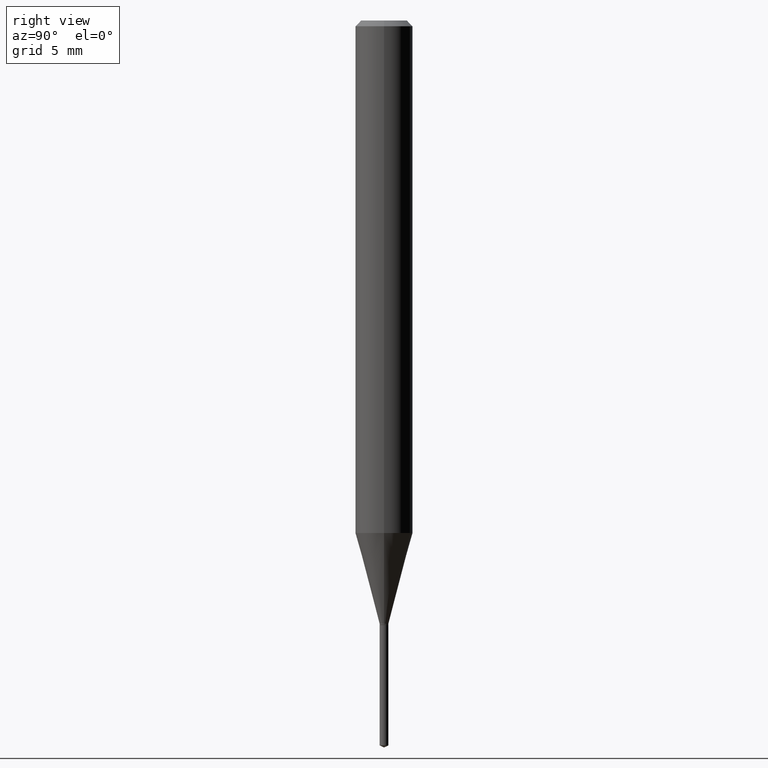
[diagram: clean part render]
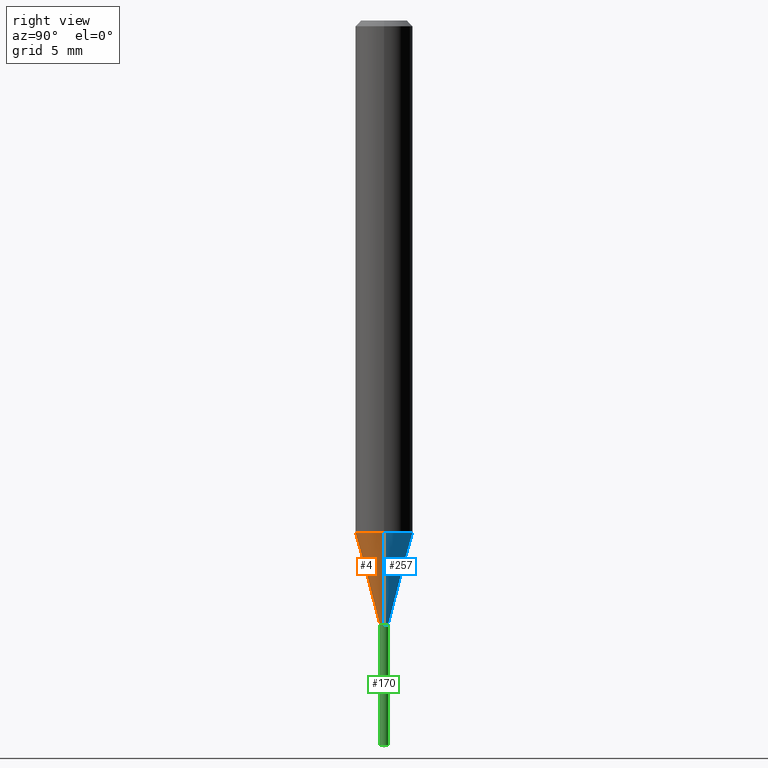
[diagram: same view with three faces highlighted in distinct colors, each labeled with its STEP entity id]
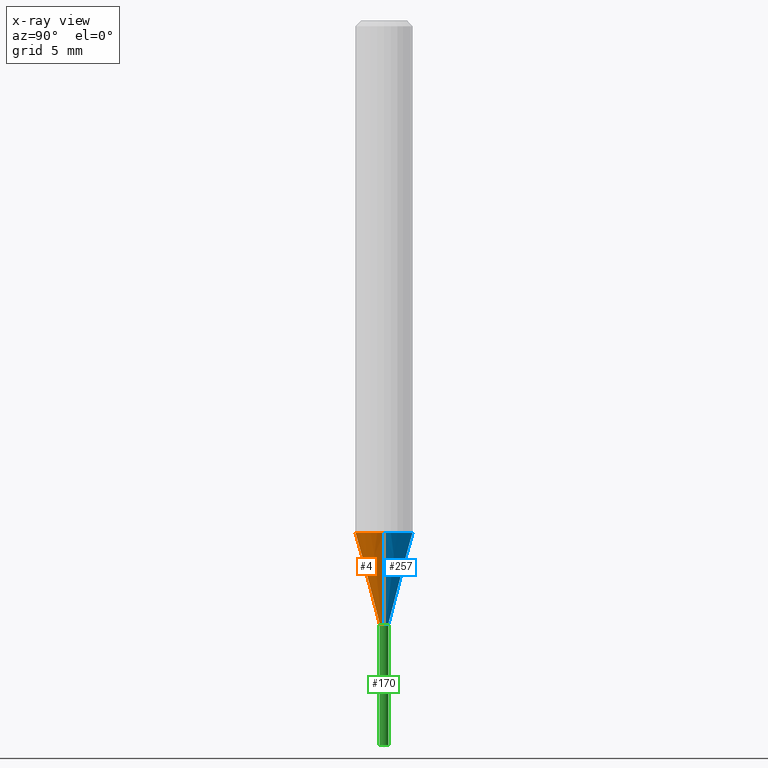
[diagram: x-ray of the same camera — body ghosted, the three highlighted faces saturated]
A machine part, right view with three faces highlighted in distinct colors.
The next image is the same camera in x-ray (body ghosted, the three faces saturated) — at least one of them is partly hidden behind the body in this view.
Their STEP definitions:

[orange] entity #4 — the highlighted conical surface has half-angle 15 deg.
#4 = ADVANCED_FACE ( 'NONE', ( #449 ), #436, .T. ) ;
#5 = VERTEX_POINT ( 'NONE', #65 ) ;
#9 = CARTESIAN_POINT ( 'NONE',  ( 3.035804975998228821E-29, -4.334324934039881032E-15, -1.241400000000000059 ) ) ;
#11 = EDGE_LOOP ( 'NONE', ( #413, #466, #432, #487 ) ) ;
#28 = CARTESIAN_POINT ( 'NONE',  ( -0.009050000000000000752, -4.270020816453591948E-15, -1.241400000000000059 ) ) ;
#46 = EDGE_CURVE ( 'NONE', #67, #190, #235, .T. ) ;
#57 = LINE ( 'NONE', #28, #110 ) ;
#65 = CARTESIAN_POINT ( 'NONE',  ( -0.05905000000000013710, -3.263230161061479349E-15, -1.054797459621556133 ) ) ;
#67 = VERTEX_POINT ( 'NONE', #445 ) ;
#82 = EDGE_CURVE ( 'NONE', #314, #5, #57, .T. ) ;
#100 = AXIS2_PLACEMENT_3D ( 'NONE', #9, #112, #412 ) ;
#110 = VECTOR ( 'NONE', #220, 39.37007874015747433 ) ;
#112 = DIRECTION ( 'NONE',  ( -2.445468806185136597E-29, 3.491481338843145583E-15, 1.000000000000000000 ) ) ;
#187 = CARTESIAN_POINT ( 'NONE',  ( -0.009050000000000000752, -4.273861445926320044E-15, -1.241400000000000059 ) ) ;
#190 = VERTEX_POINT ( 'NONE', #229 ) ;
#191 = CIRCLE ( 'NONE', #100, 0.009050000000000000752 ) ;
#213 = AXIS2_PLACEMENT_3D ( 'NONE', #266, #416, #351 ) ;
#214 = EDGE_CURVE ( 'NONE', #314, #67, #191, .T. ) ;
#220 = DIRECTION ( 'NONE',  ( -0.2588190451025213501, 5.211531920934551042E-15, 0.9659258262890682012 ) ) ;
#229 = CARTESIAN_POINT ( 'NONE',  ( 0.05905000000000013710, -4.095149592645195340E-15, -1.054797459621556133 ) ) ;
#235 = LINE ( 'NONE', #241, #373 ) ;
#241 = CARTESIAN_POINT ( 'NONE',  ( 0.009050000000000000752, -4.397520746272941828E-15, -1.241400000000000059 ) ) ;
#253 = EDGE_CURVE ( 'NONE', #5, #190, #388, .T. ) ;
#266 = CARTESIAN_POINT ( 'NONE',  ( 3.035804975998228821E-29, -4.334324934039881032E-15, -1.241400000000000059 ) ) ;
#314 = VERTEX_POINT ( 'NONE', #187 ) ;
#351 = DIRECTION ( 'NONE',  ( 1.000000000000000000, -6.982962677686316409E-15, 0.000000000000000000 ) ) ;
#368 = AXIS2_PLACEMENT_3D ( 'NONE', #417, #384, #458 ) ;
#373 = VECTOR ( 'NONE', #393, 39.37007874015747433 ) ;
#384 = DIRECTION ( 'NONE',  ( -2.445468806185136597E-29, 3.491481338843145583E-15, 1.000000000000000000 ) ) ;
#388 = CIRCLE ( 'NONE', #368, 0.05905000000000013710 ) ;
#393 = DIRECTION ( 'NONE',  ( 0.2588190451025213501, 1.565188264969621968E-15, 0.9659258262890682012 ) ) ;
#412 = DIRECTION ( 'NONE',  ( 1.000000000000000000, -6.982962677686316409E-15, 0.000000000000000000 ) ) ;
#413 = ORIENTED_EDGE ( 'NONE', *, *, #82, .F. ) ;
#416 = DIRECTION ( 'NONE',  ( -2.445468806185136597E-29, 3.491481338843145583E-15, 1.000000000000000000 ) ) ;
#417 = CARTESIAN_POINT ( 'NONE',  ( 2.579474284347841875E-29, -3.682805646527819631E-15, -1.054797459621556133 ) ) ;
#432 = ORIENTED_EDGE ( 'NONE', *, *, #46, .T. ) ;
#436 = CONICAL_SURFACE ( 'NONE', #213, 0.009050000000000000752, 0.2617993877991500740 ) ;
#445 = CARTESIAN_POINT ( 'NONE',  ( 0.009050000000000000752, -4.397520746272941828E-15, -1.241400000000000059 ) ) ;
#449 = FACE_OUTER_BOUND ( 'NONE', #11, .T. ) ;
#458 = DIRECTION ( 'NONE',  ( 1.000000000000000000, -6.982962677686264344E-15, 0.000000000000000000 ) ) ;
#466 = ORIENTED_EDGE ( 'NONE', *, *, #214, .T. ) ;
#487 = ORIENTED_EDGE ( 'NONE', *, *, #253, .F. ) ;

[blue] entity #257 — the highlighted conical surface has half-angle 15 deg.
#5 = VERTEX_POINT ( 'NONE', #65 ) ;
#28 = CARTESIAN_POINT ( 'NONE',  ( -0.009050000000000000752, -4.270020816453591948E-15, -1.241400000000000059 ) ) ;
#39 = ORIENTED_EDGE ( 'NONE', *, *, #378, .F. ) ;
#42 = FACE_OUTER_BOUND ( 'NONE', #160, .T. ) ;
#46 = EDGE_CURVE ( 'NONE', #67, #190, #235, .T. ) ;
#57 = LINE ( 'NONE', #28, #110 ) ;
#65 = CARTESIAN_POINT ( 'NONE',  ( -0.05905000000000013710, -3.263230161061479349E-15, -1.054797459621556133 ) ) ;
#67 = VERTEX_POINT ( 'NONE', #445 ) ;
#82 = EDGE_CURVE ( 'NONE', #314, #5, #57, .T. ) ;
#109 = DIRECTION ( 'NONE',  ( -2.445468806185136597E-29, 3.491481338843145583E-15, 1.000000000000000000 ) ) ;
#110 = VECTOR ( 'NONE', #220, 39.37007874015747433 ) ;
#123 = DIRECTION ( 'NONE',  ( -2.445468806185136597E-29, 3.491481338843145583E-15, 1.000000000000000000 ) ) ;
#158 = ORIENTED_EDGE ( 'NONE', *, *, #164, .T. ) ;
#160 = EDGE_LOOP ( 'NONE', ( #158, #347, #39, #397 ) ) ;
#164 = EDGE_CURVE ( 'NONE', #67, #314, #362, .T. ) ;
#165 = AXIS2_PLACEMENT_3D ( 'NONE', #309, #109, #488 ) ;
#187 = CARTESIAN_POINT ( 'NONE',  ( -0.009050000000000000752, -4.273861445926320044E-15, -1.241400000000000059 ) ) ;
#190 = VERTEX_POINT ( 'NONE', #229 ) ;
#206 = CIRCLE ( 'NONE', #335, 0.05905000000000013710 ) ;
#220 = DIRECTION ( 'NONE',  ( -0.2588190451025213501, 5.211531920934551042E-15, 0.9659258262890682012 ) ) ;
#227 = AXIS2_PLACEMENT_3D ( 'NONE', #376, #422, #352 ) ;
#229 = CARTESIAN_POINT ( 'NONE',  ( 0.05905000000000013710, -4.095149592645195340E-15, -1.054797459621556133 ) ) ;
#235 = LINE ( 'NONE', #241, #373 ) ;
#241 = CARTESIAN_POINT ( 'NONE',  ( 0.009050000000000000752, -4.397520746272941828E-15, -1.241400000000000059 ) ) ;
#257 = ADVANCED_FACE ( 'NONE', ( #42 ), #430, .T. ) ;
#309 = CARTESIAN_POINT ( 'NONE',  ( 3.035804975998228821E-29, -4.334324934039881032E-15, -1.241400000000000059 ) ) ;
#314 = VERTEX_POINT ( 'NONE', #187 ) ;
#335 = AXIS2_PLACEMENT_3D ( 'NONE', #431, #123, #390 ) ;
#347 = ORIENTED_EDGE ( 'NONE', *, *, #82, .T. ) ;
#352 = DIRECTION ( 'NONE',  ( 1.000000000000000000, -6.982962677686316409E-15, 0.000000000000000000 ) ) ;
#362 = CIRCLE ( 'NONE', #165, 0.009050000000000000752 ) ;
#373 = VECTOR ( 'NONE', #393, 39.37007874015747433 ) ;
#376 = CARTESIAN_POINT ( 'NONE',  ( 3.035804975998228821E-29, -4.334324934039881032E-15, -1.241400000000000059 ) ) ;
#378 = EDGE_CURVE ( 'NONE', #190, #5, #206, .T. ) ;
#390 = DIRECTION ( 'NONE',  ( 1.000000000000000000, -6.982962677686264344E-15, 0.000000000000000000 ) ) ;
#393 = DIRECTION ( 'NONE',  ( 0.2588190451025213501, 1.565188264969621968E-15, 0.9659258262890682012 ) ) ;
#397 = ORIENTED_EDGE ( 'NONE', *, *, #46, .F. ) ;
#422 = DIRECTION ( 'NONE',  ( -2.445468806185136597E-29, 3.491481338843145583E-15, 1.000000000000000000 ) ) ;
#430 = CONICAL_SURFACE ( 'NONE', #227, 0.009050000000000000752, 0.2617993877991500740 ) ;
#431 = CARTESIAN_POINT ( 'NONE',  ( 2.579474284347841875E-29, -3.682805646527819631E-15, -1.054797459621556133 ) ) ;
#445 = CARTESIAN_POINT ( 'NONE',  ( 0.009050000000000000752, -4.397520746272941828E-15, -1.241400000000000059 ) ) ;
#488 = DIRECTION ( 'NONE',  ( 1.000000000000000000, -6.982962677686316409E-15, 0.000000000000000000 ) ) ;

[green] entity #170 — the highlighted cylindrical surface (edge-blend (fillet) strip) has radius 0.2299 mm, axis along (-0, 0, 1).
#3 = CARTESIAN_POINT ( 'NONE',  ( -6.319581223303030137E-17, -0.009050000000004347969, -1.244099999999999984 ) ) ;
#13 = CARTESIAN_POINT ( 'NONE',  ( 6.430411758632554466E-17, 0.009049999999994789643, -1.491879915693697267 ) ) ;
#14 = EDGE_CURVE ( 'NONE', #113, #233, #173, .T. ) ;
#16 = ORIENTED_EDGE ( 'NONE', *, *, #14, .F. ) ;
#36 = ORIENTED_EDGE ( 'NONE', *, *, #440, .T. ) ;
#54 = AXIS2_PLACEMENT_3D ( 'NONE', #186, #382, #97 ) ;
#71 = DIRECTION ( 'NONE',  ( -2.433949354103485076E-29, 3.507977849870565923E-15, 1.000000000000000000 ) ) ;
#87 = ORIENTED_EDGE ( 'NONE', *, *, #329, .T. ) ;
#91 = CIRCLE ( 'NONE', #405, 0.009050000000000004222 ) ;
#97 = DIRECTION ( 'NONE',  ( -6.982962677686265922E-15, -1.000000000000000000, 0.000000000000000000 ) ) ;
#113 = VERTEX_POINT ( 'NONE', #258 ) ;
#124 = VERTEX_POINT ( 'NONE', #411 ) ;
#143 = CARTESIAN_POINT ( 'NONE',  ( 3.042407741774928155E-29, -4.343751933654757151E-15, -1.244099999999999984 ) ) ;
#144 = CARTESIAN_POINT ( 'NONE',  ( 3.645491507537419124E-29, -5.212958389551043187E-15, -1.491879915693697267 ) ) ;
#170 = ADVANCED_FACE ( 'NONE', ( #260 ), #339, .T. ) ;
#173 = CIRCLE ( 'NONE', #54, 0.009050000000000000752 ) ;
#182 = AXIS2_PLACEMENT_3D ( 'NONE', #143, #71, #350 ) ;
#186 = CARTESIAN_POINT ( 'NONE',  ( 3.042407741774928155E-29, -4.343751933654757151E-15, -1.244099999999999984 ) ) ;
#189 = DIRECTION ( 'NONE',  ( -6.982962677686265922E-15, -1.000000000000000000, 0.000000000000000000 ) ) ;
#222 = DIRECTION ( 'NONE',  ( -2.433949354103485076E-29, 3.507977849870566318E-15, 1.000000000000000000 ) ) ;
#233 = VERTEX_POINT ( 'NONE', #267 ) ;
#258 = CARTESIAN_POINT ( 'NONE',  ( -6.319581223303028904E-17, -0.009050000000004344500, -1.244099999999999984 ) ) ;
#260 = FACE_OUTER_BOUND ( 'NONE', #360, .T. ) ;
#267 = CARTESIAN_POINT ( 'NONE',  ( 6.430411758632560629E-17, 0.009049999999995657005, -1.244099999999999984 ) ) ;
#270 = LINE ( 'NONE', #3, #282 ) ;
#280 = EDGE_CURVE ( 'NONE', #124, #113, #270, .T. ) ;
#282 = VECTOR ( 'NONE', #222, 39.37007874015748143 ) ;
#286 = LINE ( 'NONE', #318, #343 ) ;
#318 = CARTESIAN_POINT ( 'NONE',  ( 6.430411758631950494E-17, 0.009049999999995658739, -1.244099999999999984 ) ) ;
#329 = EDGE_CURVE ( 'NONE', #124, #463, #91, .T. ) ;
#339 = CYLINDRICAL_SURFACE ( 'NONE', #182, 0.009050000000000002487 ) ;
#343 = VECTOR ( 'NONE', #468, 39.37007874015748143 ) ;
#350 = DIRECTION ( 'NONE',  ( -6.982962677686265922E-15, -1.000000000000000000, 0.000000000000000000 ) ) ;
#360 = EDGE_LOOP ( 'NONE', ( #87, #36, #16, #452 ) ) ;
#382 = DIRECTION ( 'NONE',  ( -2.433949354103485076E-29, 3.507977849870565923E-15, 1.000000000000000000 ) ) ;
#386 = DIRECTION ( 'NONE',  ( -2.433949354103485076E-29, 3.507977849870565923E-15, 1.000000000000000000 ) ) ;
#405 = AXIS2_PLACEMENT_3D ( 'NONE', #144, #386, #189 ) ;
#411 = CARTESIAN_POINT ( 'NONE',  ( -6.319581223302427398E-17, -0.009050000000005217066, -1.491879915693697267 ) ) ;
#440 = EDGE_CURVE ( 'NONE', #463, #233, #286, .T. ) ;
#452 = ORIENTED_EDGE ( 'NONE', *, *, #280, .F. ) ;
#463 = VERTEX_POINT ( 'NONE', #13 ) ;
#468 = DIRECTION ( 'NONE',  ( -2.433949354103485076E-29, 3.507977849870566318E-15, 1.000000000000000000 ) ) ;